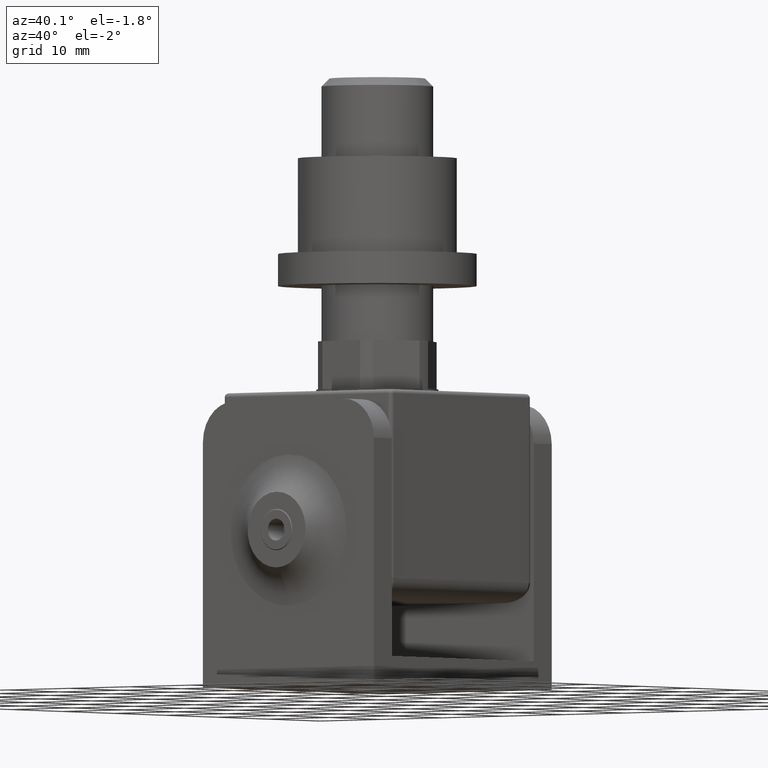
[diagram: clean part render]
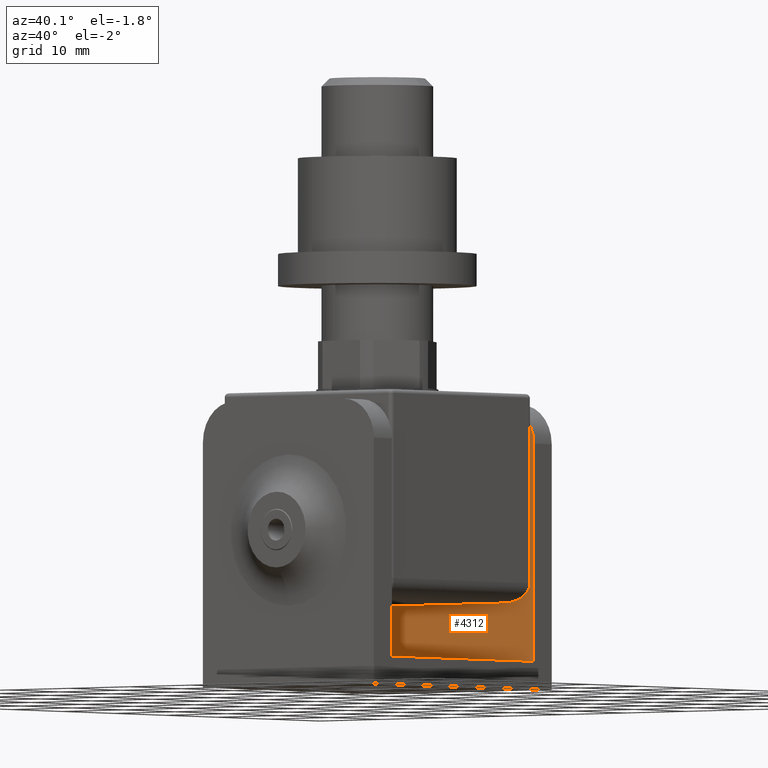
[diagram: same view with one face highlighted and labeled with its STEP entity id]
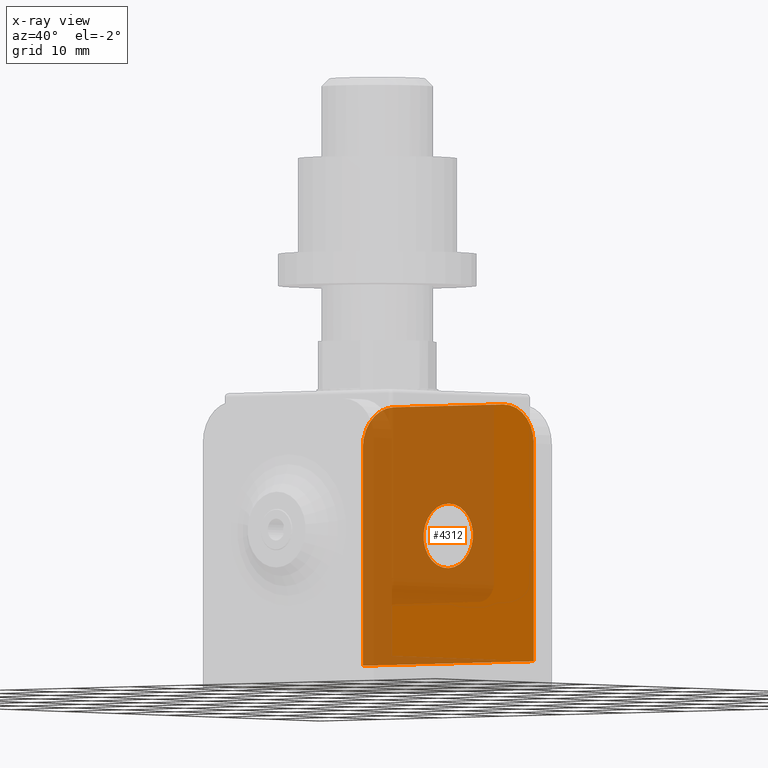
[diagram: x-ray of the same camera — body ghosted, the highlighted face saturated]
A machine part, auxiliary view. The second image highlights one B-rep face of the part: STEP entity #4312.
The next image is the same camera in x-ray: the body ghosted, the highlighted face saturated — about 62% of this face is hidden behind the body in this view.
In plain terms, the highlighted planar face has unit normal (0, 1, 0).
Its self-contained STEP definition (entity closure, byte-faithful):
#575 = CIRCLE ( 'NONE', #13283, 5.000000000000000888 ) ;
#910 = ORIENTED_EDGE ( 'NONE', *, *, #12696, .T. ) ;
#969 = DIRECTION ( 'NONE',  ( -1.000000000000000000, -0.000000000000000000, -0.000000000000000000 ) ) ;
#1020 = ORIENTED_EDGE ( 'NONE', *, *, #13037, .T. ) ;
#1045 = ORIENTED_EDGE ( 'NONE', *, *, #2963, .F. ) ;
#1125 = CIRCLE ( 'NONE', #2796, 4.049999999999999822 ) ;
#1346 = VERTEX_POINT ( 'NONE', #11562 ) ;
#1437 = FACE_BOUND ( 'NONE', #13123, .T. ) ;
#1573 = ORIENTED_EDGE ( 'NONE', *, *, #3170, .F. ) ;
#1629 = VERTEX_POINT ( 'NONE', #4950 ) ;
#1748 = EDGE_CURVE ( 'NONE', #12590, #1629, #11461, .T. ) ;
#2165 = ORIENTED_EDGE ( 'NONE', *, *, #1748, .T. ) ;
#2407 = ORIENTED_EDGE ( 'NONE', *, *, #11225, .F. ) ;
#2796 = AXIS2_PLACEMENT_3D ( 'NONE', #3397, #3590, #11671 ) ;
#2876 = VERTEX_POINT ( 'NONE', #11873 ) ;
#2963 = EDGE_CURVE ( 'NONE', #2876, #2876, #1125, .T. ) ;
#3170 = EDGE_CURVE ( 'NONE', #4829, #14500, #5277, .T. ) ;
#3397 = CARTESIAN_POINT ( 'NONE',  ( 0.000000000000000000, 13.79999999999999893, 1.599999999999997202 ) ) ;
#3563 = CARTESIAN_POINT ( 'NONE',  ( -14.00000000000000000, 13.79999999999999893, 12.90000000000000213 ) ) ;
#3590 = DIRECTION ( 'NONE',  ( -0.000000000000000000, -1.000000000000000000, -0.000000000000000000 ) ) ;
#4300 = PLANE ( 'NONE',  #14537 ) ;
#4312 = ADVANCED_FACE ( 'NONE', ( #1437, #13971 ), #4300, .F. ) ;
#4563 = VECTOR ( 'NONE', #11257, 1000.000000000000000 ) ;
#4592 = DIRECTION ( 'NONE',  ( -0.000000000000000000, -0.000000000000000000, -1.000000000000000000 ) ) ;
#4808 = VECTOR ( 'NONE', #4592, 1000.000000000000000 ) ;
#4829 = VERTEX_POINT ( 'NONE', #6543 ) ;
#4950 = CARTESIAN_POINT ( 'NONE',  ( -9.000000000000000000, 13.79999999999999893, 17.89999999999999858 ) ) ;
#5277 = LINE ( 'NONE', #5332, #4563 ) ;
#5332 = CARTESIAN_POINT ( 'NONE',  ( 14.00000000000000000, 13.79999999999999893, -14.39999999999998970 ) ) ;
#5915 = CARTESIAN_POINT ( 'NONE',  ( 14.00000000000000000, 13.79999999999999893, -14.39999999999998970 ) ) ;
#5920 = EDGE_CURVE ( 'NONE', #1346, #12590, #11287, .T. ) ;
#6543 = CARTESIAN_POINT ( 'NONE',  ( 14.00000000000000000, 13.79999999999999893, -14.39999999999998970 ) ) ;
#7711 = CARTESIAN_POINT ( 'NONE',  ( 14.00000000000000000, 13.79999999999999893, -14.39999999999998970 ) ) ;
#7837 = CARTESIAN_POINT ( 'NONE',  ( -14.00000000000000000, 13.79999999999999893, -14.39999999999998970 ) ) ;
#8046 = CARTESIAN_POINT ( 'NONE',  ( -9.000000000000000000, 13.79999999999999893, 12.90000000000000213 ) ) ;
#8263 = CARTESIAN_POINT ( 'NONE',  ( 9.000000000000001776, 13.79999999999999893, 12.90000000000000213 ) ) ;
#8542 = DIRECTION ( 'NONE',  ( 0.000000000000000000, 0.000000000000000000, 1.000000000000000000 ) ) ;
#8949 = LINE ( 'NONE', #13134, #12346 ) ;
#9528 = EDGE_LOOP ( 'NONE', ( #2407, #10603, #2165, #1020, #910, #1573 ) ) ;
#9881 = LINE ( 'NONE', #5915, #4808 ) ;
#10104 = DIRECTION ( 'NONE',  ( 0.000000000000000000, -0.000000000000000000, 1.000000000000000000 ) ) ;
#10603 = ORIENTED_EDGE ( 'NONE', *, *, #5920, .T. ) ;
#11225 = EDGE_CURVE ( 'NONE', #1346, #4829, #9881, .T. ) ;
#11257 = DIRECTION ( 'NONE',  ( -1.000000000000000000, -0.000000000000000000, -0.000000000000000000 ) ) ;
#11287 = CIRCLE ( 'NONE', #13489, 5.000000000000000888 ) ;
#11461 = LINE ( 'NONE', #14787, #13829 ) ;
#11562 = CARTESIAN_POINT ( 'NONE',  ( 14.00000000000000000, 13.79999999999999893, 12.90000000000000213 ) ) ;
#11671 = DIRECTION ( 'NONE',  ( 0.000000000000000000, 0.000000000000000000, 1.000000000000000000 ) ) ;
#11873 = CARTESIAN_POINT ( 'NONE',  ( 0.000000000000000000, 13.79999999999999893, 5.649999999999996803 ) ) ;
#12306 = VERTEX_POINT ( 'NONE', #3563 ) ;
#12346 = VECTOR ( 'NONE', #13491, 1000.000000000000000 ) ;
#12373 = DIRECTION ( 'NONE',  ( 0.000000000000000000, 1.000000000000000000, 0.000000000000000000 ) ) ;
#12476 = CARTESIAN_POINT ( 'NONE',  ( 9.000000000000001776, 13.79999999999999893, 17.89999999999999858 ) ) ;
#12505 = DIRECTION ( 'NONE',  ( -0.000000000000000000, -1.000000000000000000, -0.000000000000000000 ) ) ;
#12590 = VERTEX_POINT ( 'NONE', #12476 ) ;
#12659 = DIRECTION ( 'NONE',  ( 0.000000000000000000, 0.000000000000000000, 1.000000000000000000 ) ) ;
#12696 = EDGE_CURVE ( 'NONE', #12306, #14500, #8949, .T. ) ;
#13037 = EDGE_CURVE ( 'NONE', #1629, #12306, #575, .T. ) ;
#13123 = EDGE_LOOP ( 'NONE', ( #1045 ) ) ;
#13134 = CARTESIAN_POINT ( 'NONE',  ( -14.00000000000000000, 13.79999999999999893, -14.39999999999998970 ) ) ;
#13283 = AXIS2_PLACEMENT_3D ( 'NONE', #8046, #13734, #12659 ) ;
#13489 = AXIS2_PLACEMENT_3D ( 'NONE', #8263, #12505, #8542 ) ;
#13491 = DIRECTION ( 'NONE',  ( -0.000000000000000000, -0.000000000000000000, -1.000000000000000000 ) ) ;
#13734 = DIRECTION ( 'NONE',  ( -0.000000000000000000, -1.000000000000000000, -0.000000000000000000 ) ) ;
#13829 = VECTOR ( 'NONE', #969, 1000.000000000000000 ) ;
#13971 = FACE_OUTER_BOUND ( 'NONE', #9528, .T. ) ;
#14500 = VERTEX_POINT ( 'NONE', #7837 ) ;
#14537 = AXIS2_PLACEMENT_3D ( 'NONE', #7711, #12373, #10104 ) ;
#14787 = CARTESIAN_POINT ( 'NONE',  ( 14.00000000000000000, 13.79999999999999893, 17.89999999999999858 ) ) ;